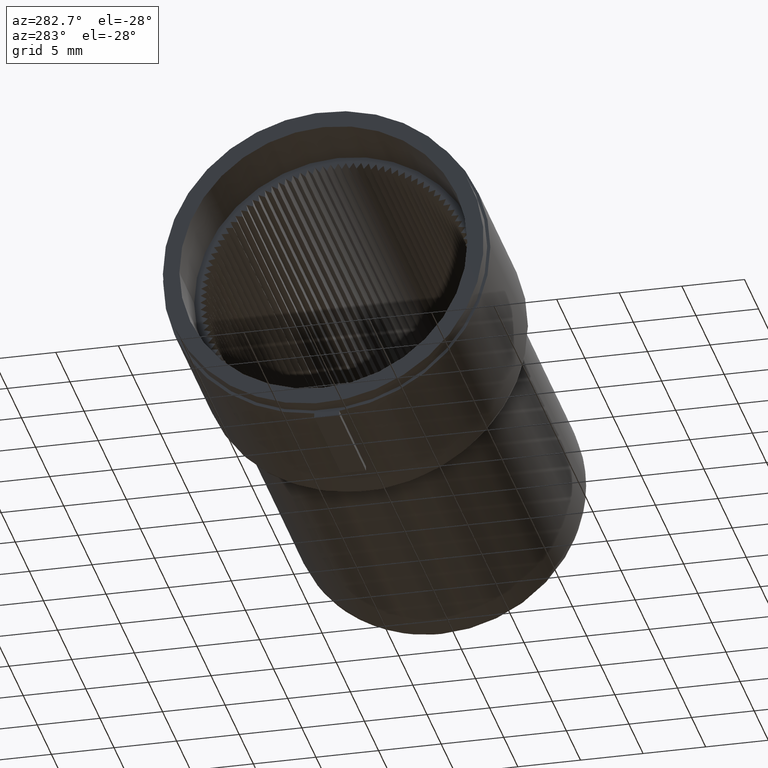
[diagram: clean part render]
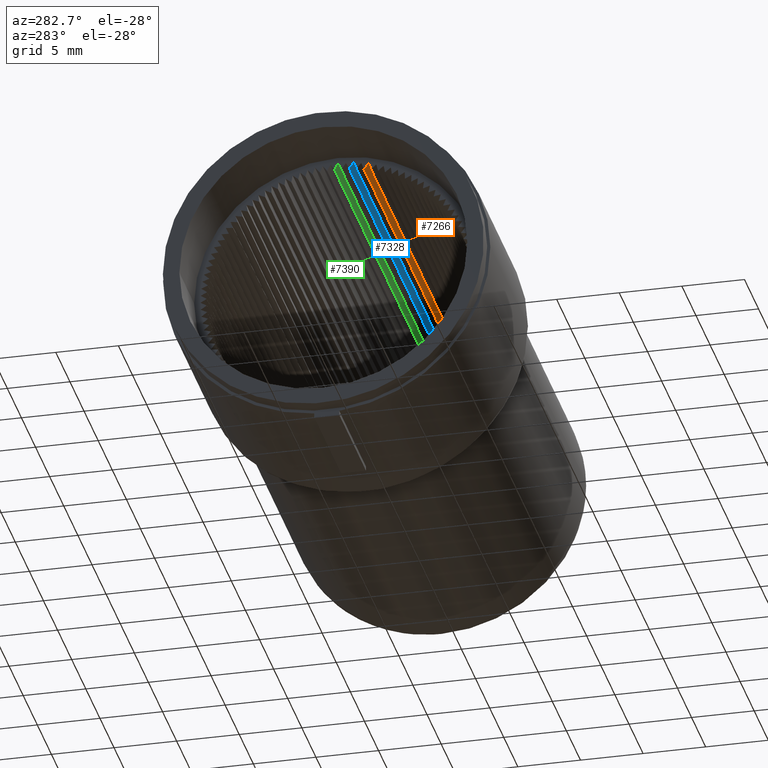
[diagram: same view with three faces highlighted in distinct colors, each labeled with its STEP entity id]
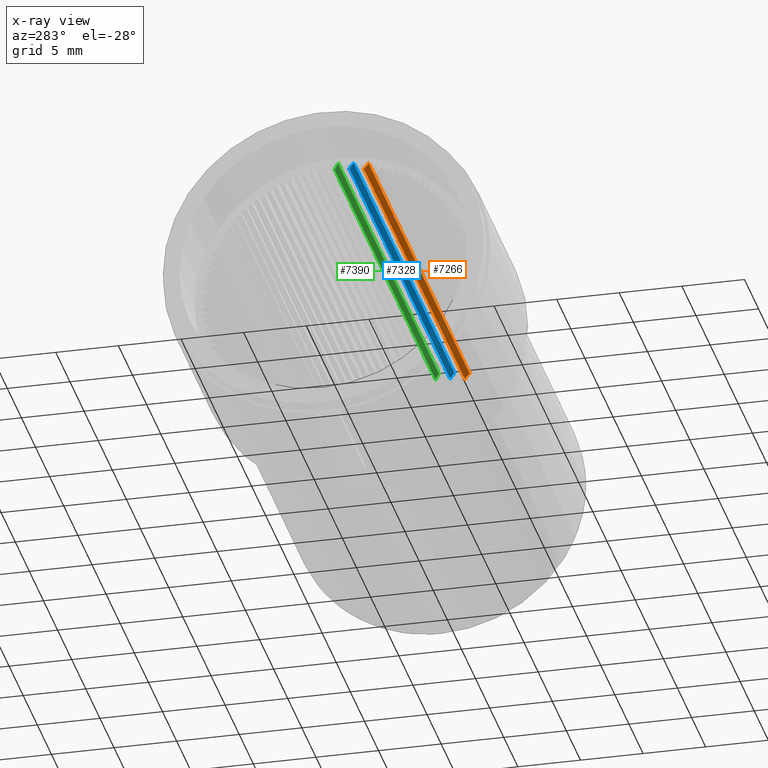
[diagram: x-ray of the same camera — body ghosted, the three highlighted faces saturated]
A machine part, auxiliary view with three faces highlighted in distinct colors.
The next image is the same camera in x-ray (body ghosted, the three faces saturated) — at least one of them is partly hidden behind the body in this view.
Their STEP definitions:

[orange] entity #7266 — the highlighted planar face has unit normal (-0, 0.7331, 0.6802).
#2282=CARTESIAN_POINT('',(-14.403181380702875,-0.353801628387088,10.724207034003213));
#2283=VERTEX_POINT('',#2282);
#2290=CARTESIAN_POINT('',(21.346818619297132,-0.353801628379166,10.724207033996912));
#2291=VERTEX_POINT('',#2290);
#2292=CARTESIAN_POINT('',(-14.403181380702875,-0.353801628387088,10.724207034003213));
#2293=DIRECTION('',(1.0,2.215850E-013,-1.762444E-013));
#2294=VECTOR('',#2293,35.750000000000007);
#2295=LINE('',#2292,#2294);
#2296=EDGE_CURVE('',#2283,#2291,#2295,.T.);
#7236=CARTESIAN_POINT('',(-14.403181380702875,-0.353801628387088,10.724207034003213));
#7237=DIRECTION('',(-4.251061E-014,0.733051871829826,0.680172737770920));
#7238=DIRECTION('',(-1.0,-2.219745E-013,1.767319E-013));
#7239=AXIS2_PLACEMENT_3D('',#7236,#7237,#7238);
#7240=PLANE('',#7239);
#7241=CARTESIAN_POINT('',(21.346818619296968,0.042064027809611,10.297565323520033));
#7242=VERTEX_POINT('',#7241);
#7243=CARTESIAN_POINT('',(-14.403181380703041,0.042064027807859,10.297565323519686));
#7244=VERTEX_POINT('',#7243);
#7245=CARTESIAN_POINT('',(21.346818619296968,0.042064027809611,10.297565323520033));
#7246=DIRECTION('',(-1.0,0.0,0.0));
#7247=VECTOR('',#7246,35.750000000000007);
#7248=LINE('',#7245,#7247);
#7249=EDGE_CURVE('',#7242,#7244,#7248,.T.);
#7250=ORIENTED_EDGE('',*,*,#7249,.F.);
#7251=CARTESIAN_POINT('',(21.346818619296968,0.042064027809611,10.297565323520033));
#7252=DIRECTION('',(2.807950E-013,-0.680172737770918,0.733051871829828));
#7253=VECTOR('',#7252,0.582007531625157);
#7254=LINE('',#7251,#7253);
#7255=EDGE_CURVE('',#7242,#2291,#7254,.T.);
#7256=ORIENTED_EDGE('',*,*,#7255,.T.);
#7257=ORIENTED_EDGE('',*,*,#2296,.F.);
#7258=CARTESIAN_POINT('',(-14.403181380703041,0.042064027807859,10.297565323519686));
#7259=DIRECTION('',(2.838472E-013,-0.680172737770920,0.733051871829826));
#7260=VECTOR('',#7259,0.582007531634226);
#7261=LINE('',#7258,#7260);
#7262=EDGE_CURVE('',#7244,#2283,#7261,.T.);
#7263=ORIENTED_EDGE('',*,*,#7262,.F.);
#7264=EDGE_LOOP('',(#7250,#7256,#7257,#7263));
#7265=FACE_OUTER_BOUND('',#7264,.T.);
#7266=ADVANCED_FACE('',(#7265),#7240,.F.);

[blue] entity #7328 — the highlighted planar face has unit normal (-0, 0.8046, 0.5938).
#2442=CARTESIAN_POINT('',(-14.403181380703099,0.862319407996341,10.930834308828883));
#2443=VERTEX_POINT('',#2442);
#2450=CARTESIAN_POINT('',(21.346818619296911,0.862319408003548,10.930834308822456));
#2451=VERTEX_POINT('',#2450);
#2452=CARTESIAN_POINT('',(-14.403181380703099,0.862319407996341,10.930834308828883));
#2453=DIRECTION('',(1.0,2.015917E-013,-1.797723E-013));
#2454=VECTOR('',#2453,35.750000000000014);
#2455=LINE('',#2452,#2454);
#2456=EDGE_CURVE('',#2443,#2451,#2455,.T.);
#7298=CARTESIAN_POINT('',(-14.403181380703099,0.862319407996341,10.930834308828883));
#7299=DIRECTION('',(-5.548491E-014,0.804597779766668,0.593820185573502));
#7300=DIRECTION('',(-1.0,-2.019313E-013,1.801700E-013));
#7301=AXIS2_PLACEMENT_3D('',#7298,#7299,#7300);
#7302=PLANE('',#7301);
#7303=CARTESIAN_POINT('',(21.346818619296755,1.207927228438625,10.462552341069038));
#7304=VERTEX_POINT('',#7303);
#7305=CARTESIAN_POINT('',(-14.403181380703252,1.207927228436304,10.462552341068845));
#7306=VERTEX_POINT('',#7305);
#7307=CARTESIAN_POINT('',(21.346818619296755,1.207927228438625,10.462552341069038));
#7308=DIRECTION('',(-1.0,0.0,0.0));
#7309=VECTOR('',#7308,35.750000000000007);
#7310=LINE('',#7307,#7309);
#7311=EDGE_CURVE('',#7304,#7306,#7310,.T.);
#7312=ORIENTED_EDGE('',*,*,#7311,.F.);
#7313=CARTESIAN_POINT('',(21.346818619296755,1.207927228438625,10.462552341069038));
#7314=DIRECTION('',(2.685866E-013,-0.593820185573503,0.804597779766667));
#7315=VECTOR('',#7314,0.582007531625578);
#7316=LINE('',#7313,#7315);
#7317=EDGE_CURVE('',#7304,#2451,#7316,.T.);
#7318=ORIENTED_EDGE('',*,*,#7317,.T.);
#7319=ORIENTED_EDGE('',*,*,#2456,.F.);
#7320=CARTESIAN_POINT('',(-14.403181380703252,1.207927228436304,10.462552341068845));
#7321=DIRECTION('',(2.624823E-013,-0.593820185573503,0.804597779766667));
#7322=VECTOR('',#7321,0.582007531633806);
#7323=LINE('',#7320,#7322);
#7324=EDGE_CURVE('',#7306,#2443,#7323,.T.);
#7325=ORIENTED_EDGE('',*,*,#7324,.F.);
#7326=EDGE_LOOP('',(#7312,#7318,#7319,#7325));
#7327=FACE_OUTER_BOUND('',#7326,.T.);
#7328=ADVANCED_FACE('',(#7327),#7302,.F.);

[green] entity #7390 — the highlighted planar face has unit normal (-0, 0.866, 0.5).
#2602=CARTESIAN_POINT('',(-14.403181380703320,2.093928645133090,11.000000000003237));
#2603=VERTEX_POINT('',#2602);
#2610=CARTESIAN_POINT('',(21.346818619296684,2.093928645139573,10.999999999996767));
#2611=VERTEX_POINT('',#2610);
#2612=CARTESIAN_POINT('',(-14.403181380703320,2.093928645133090,11.000000000003237));
#2613=DIRECTION('',(1.0,1.813375E-013,-1.809648E-013));
#2614=VECTOR('',#2613,35.750000000000000);
#2615=LINE('',#2612,#2614);
#2616=EDGE_CURVE('',#2603,#2611,#2615,.T.);
#7360=CARTESIAN_POINT('',(-14.403181380703320,2.093928645133090,11.000000000003237));
#7361=DIRECTION('',(-6.662434E-014,0.866025403784439,0.500000000000000));
#7362=DIRECTION('',(-1.0,-1.816292E-013,1.813423E-013));
#7363=AXIS2_PLACEMENT_3D('',#7360,#7361,#7362);
#7364=PLANE('',#7363);
#7365=CARTESIAN_POINT('',(21.346818619296542,2.384932410952575,10.495966692414775));
#7366=VERTEX_POINT('',#7365);
#7367=CARTESIAN_POINT('',(-14.403181380703467,2.384932410949781,10.495966692414850));
#7368=VERTEX_POINT('',#7367);
#7369=CARTESIAN_POINT('',(21.346818619296542,2.384932410952575,10.495966692414775));
#7370=DIRECTION('',(-1.0,0.0,0.0));
#7371=VECTOR('',#7370,35.750000000000007);
#7372=LINE('',#7369,#7371);
#7373=EDGE_CURVE('',#7366,#7368,#7372,.T.);
#7374=ORIENTED_EDGE('',*,*,#7373,.F.);
#7375=CARTESIAN_POINT('',(21.346818619296542,2.384932410952575,10.495966692414775));
#7376=DIRECTION('',(2.441696E-013,-0.500000000000002,0.866025403784437));
#7377=VECTOR('',#7376,0.582007531626002);
#7378=LINE('',#7375,#7377);
#7379=EDGE_CURVE('',#7366,#2611,#7378,.T.);
#7380=ORIENTED_EDGE('',*,*,#7379,.T.);
#7381=ORIENTED_EDGE('',*,*,#2616,.F.);
#7382=CARTESIAN_POINT('',(-14.403181380703467,2.384932410949781,10.495966692414850));
#7383=DIRECTION('',(2.533260E-013,-0.499999999999998,0.866025403784440));
#7384=VECTOR('',#7383,0.582007531633384);
#7385=LINE('',#7382,#7384);
#7386=EDGE_CURVE('',#7368,#2603,#7385,.T.);
#7387=ORIENTED_EDGE('',*,*,#7386,.F.);
#7388=EDGE_LOOP('',(#7374,#7380,#7381,#7387));
#7389=FACE_OUTER_BOUND('',#7388,.T.);
#7390=ADVANCED_FACE('',(#7389),#7364,.F.);